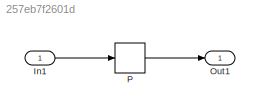
MODEL slx_257eb7f2601d
KIND model
CONFIG AbsTol = auto
CONFIG EnableMultiTasking = off
CONFIG FixedStep = auto
CONFIG MaxStep = auto
CONFIG MinStep = auto
CONFIG RelTol = 1e-3
CONFIG SampleTimeConstraint = Unconstrained
CONFIG Solver = FixedStepDiscrete
CONFIG SolverName = FixedStepDiscrete
CONFIG StartTime = 0.0
CONFIG StopTime = 10.0
BLOCK [Inport] In1
  IconDisplay = Port number
  OutDataTypeStr = boolean
  OutMax = 1
  OutMin = 0
BLOCK [Outport] Out1
  IconDisplay = Port number
BLOCK [CombinatorialLogic] P
  TruthTable = [1 1 1;0 0 0;0 1 0;0 0 0;1 0 0;1 1 0;1 1 1;0 1 0]
LINE In1:1 -> P:1
LINE P:1 -> Out1:1
